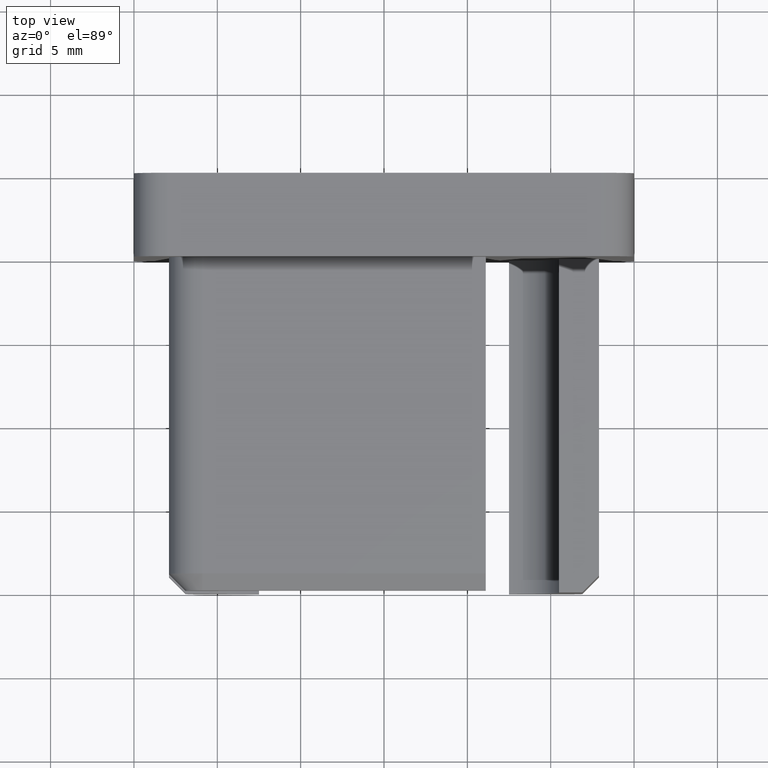
[diagram: clean part render]
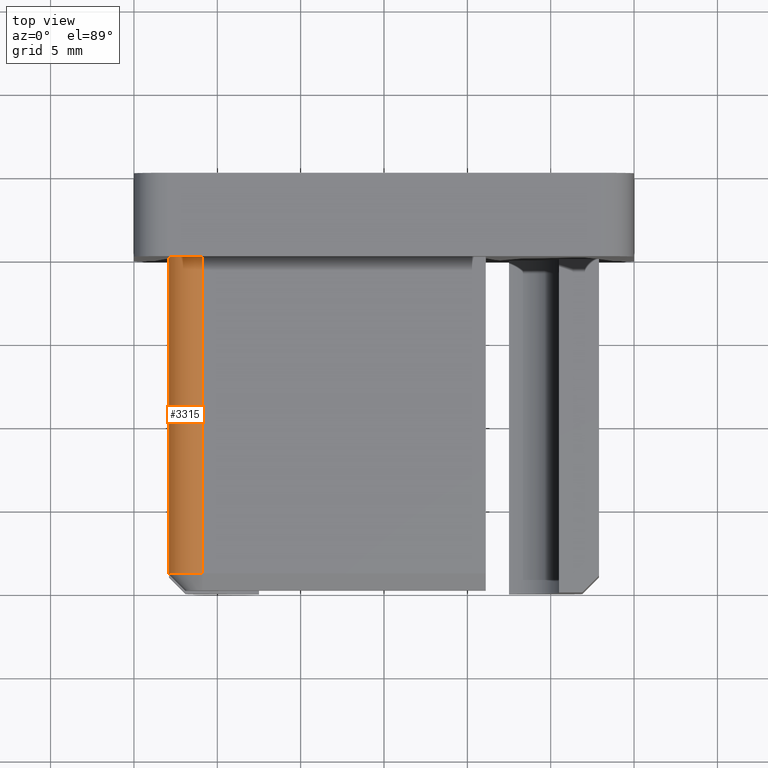
[diagram: same view with one face highlighted and labeled with its STEP entity id]
A machine part, top view. The second image highlights one B-rep face of the part: STEP entity #3315.
In plain terms, the highlighted cylindrical surface (edge-blend (fillet) strip) has radius 2 mm, axis along (0, 1, 0).
Its self-contained STEP definition (entity closure, byte-faithful):
#453 = CARTESIAN_POINT ( 'NONE',  ( -12.90000000000001100, 0.0000000000000000000, 5.899999999999997700 ) ) ;
#523 = DIRECTION ( 'NONE',  ( 0.0000000000000000000, 1.000000000000000000, 0.0000000000000000000 ) ) ;
#2601 = CARTESIAN_POINT ( 'NONE',  ( -12.90000000000001100, -18.99999999999999600, 5.899999999999997700 ) ) ;
#2732 = CIRCLE ( 'NONE', #4142, 2.000000000000000000 ) ;
#2778 = LINE ( 'NONE', #10945, #7187 ) ;
#3315 = ADVANCED_FACE ( 'NONE', ( #10634 ), #13845, .T. ) ;
#3508 = CARTESIAN_POINT ( 'NONE',  ( -10.90000000000001100, -20.00000000000000000, 7.899999999999997700 ) ) ;
#3812 = DIRECTION ( 'NONE',  ( 0.0000000000000000000, 0.0000000000000000000, 1.000000000000000000 ) ) ;
#4056 = CIRCLE ( 'NONE', #4771, 2.000000000000000000 ) ;
#4127 = EDGE_CURVE ( 'NONE', #15031, #6385, #11737, .T. ) ;
#4142 = AXIS2_PLACEMENT_3D ( 'NONE', #8676, #6368, #7457 ) ;
#4719 = VECTOR ( 'NONE', #9522, 1000.000000000000000 ) ;
#4771 = AXIS2_PLACEMENT_3D ( 'NONE', #7869, #523, #5524 ) ;
#4850 = EDGE_CURVE ( 'NONE', #7107, #11234, #2778, .T. ) ;
#5484 = ORIENTED_EDGE ( 'NONE', *, *, #4127, .F. ) ;
#5524 = DIRECTION ( 'NONE',  ( 0.0000000000000000000, 0.0000000000000000000, 1.000000000000000000 ) ) ;
#5846 = CARTESIAN_POINT ( 'NONE',  ( -10.90000000000001100, 0.0000000000000000000, 7.899999999999997700 ) ) ;
#6321 = DIRECTION ( 'NONE',  ( 0.0000000000000000000, 1.000000000000000000, 0.0000000000000000000 ) ) ;
#6368 = DIRECTION ( 'NONE',  ( 0.0000000000000000000, 1.000000000000000000, 0.0000000000000000000 ) ) ;
#6385 = VERTEX_POINT ( 'NONE', #14862 ) ;
#7107 = VERTEX_POINT ( 'NONE', #2601 ) ;
#7184 = ORIENTED_EDGE ( 'NONE', *, *, #11483, .F. ) ;
#7187 = VECTOR ( 'NONE', #13533, 1000.000000000000000 ) ;
#7457 = DIRECTION ( 'NONE',  ( 0.0000000000000000000, 0.0000000000000000000, -1.000000000000000000 ) ) ;
#7869 = CARTESIAN_POINT ( 'NONE',  ( -10.90000000000001100, 0.0000000000000000000, 5.899999999999997700 ) ) ;
#8676 = CARTESIAN_POINT ( 'NONE',  ( -10.90000000000001100, -18.99999999999999600, 5.899999999999997700 ) ) ;
#9405 = ORIENTED_EDGE ( 'NONE', *, *, #10299, .T. ) ;
#9522 = DIRECTION ( 'NONE',  ( -0.0000000000000000000, -1.000000000000000000, -0.0000000000000000000 ) ) ;
#10299 = EDGE_CURVE ( 'NONE', #7107, #6385, #2732, .T. ) ;
#10634 = FACE_OUTER_BOUND ( 'NONE', #11323, .T. ) ;
#10945 = CARTESIAN_POINT ( 'NONE',  ( -12.90000000000001100, -20.00000000000000000, 5.899999999999997700 ) ) ;
#11234 = VERTEX_POINT ( 'NONE', #453 ) ;
#11323 = EDGE_LOOP ( 'NONE', ( #13347, #9405, #5484, #7184 ) ) ;
#11483 = EDGE_CURVE ( 'NONE', #11234, #15031, #4056, .T. ) ;
#11737 = LINE ( 'NONE', #3508, #4719 ) ;
#11936 = AXIS2_PLACEMENT_3D ( 'NONE', #12301, #6321, #3812 ) ;
#12301 = CARTESIAN_POINT ( 'NONE',  ( -10.90000000000001100, -20.00000000000000000, 5.899999999999997700 ) ) ;
#13347 = ORIENTED_EDGE ( 'NONE', *, *, #4850, .F. ) ;
#13533 = DIRECTION ( 'NONE',  ( 0.0000000000000000000, 1.000000000000000000, 0.0000000000000000000 ) ) ;
#13845 = CYLINDRICAL_SURFACE ( 'NONE', #11936, 2.000000000000000000 ) ;
#14862 = CARTESIAN_POINT ( 'NONE',  ( -10.90000000000001100, -18.99999999999999600, 7.899999999999997700 ) ) ;
#15031 = VERTEX_POINT ( 'NONE', #5846 ) ;